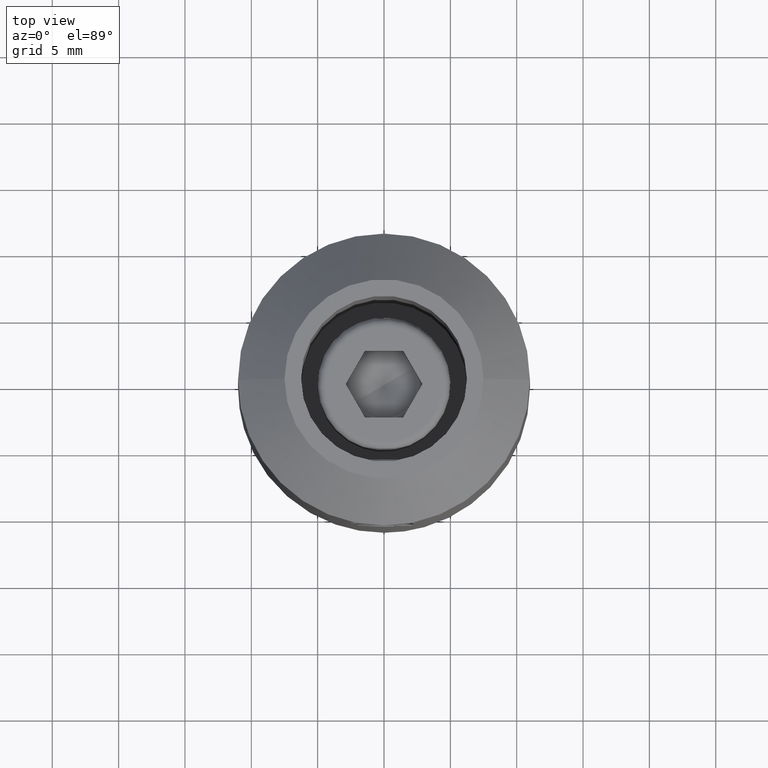
[diagram: clean part render]
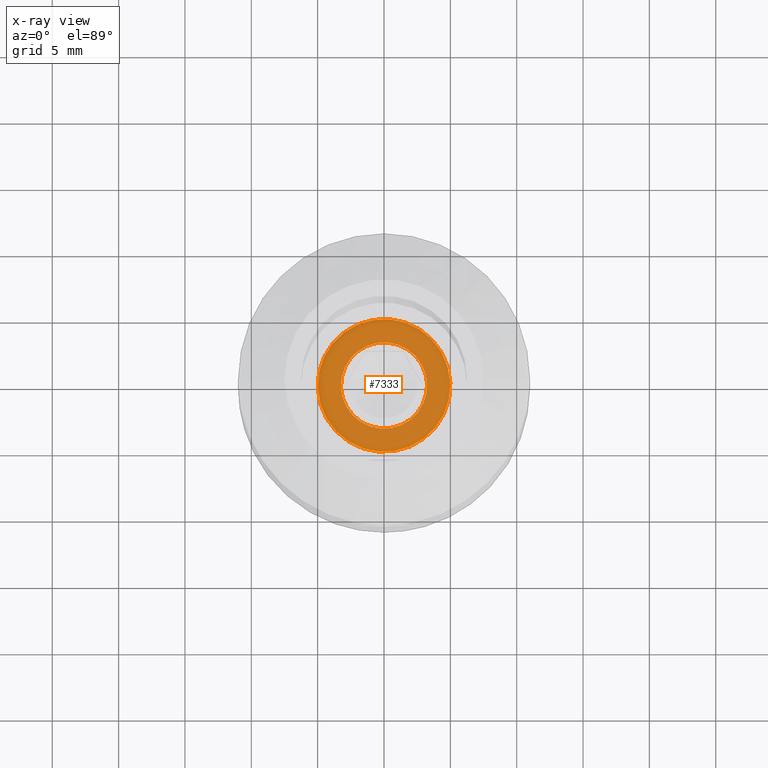
[diagram: x-ray — body ghosted, one internal face saturated and labeled with its STEP entity id]
A machine part, top view, then the same camera in x-ray: the body is ghosted and one INTERNAL B-rep face — a face not visible from any outside direction — is saturated and labeled: STEP entity #7333.
In plain terms, the highlighted planar face has unit normal (0, 0, -1).
Its self-contained STEP definition (entity closure, byte-faithful):
#152 = CARTESIAN_POINT ( 'NONE',  ( 6.000000000000001776, 5.000000000000084377, 4.336808689942017736E-16 ) ) ;
#1693 = EDGE_LOOP ( 'NONE', ( #19337, #6435 ) ) ;
#1995 = CARTESIAN_POINT ( 'NONE',  ( 5.999999999999998224, -1.054711873393898713E-14, 5.000000000000062172 ) ) ;
#2171 = VERTEX_POINT ( 'NONE', #6700 ) ;
#3101 = EDGE_LOOP ( 'NONE', ( #15708, #5265 ) ) ;
#3600 = FACE_BOUND ( 'NONE', #1693, .T. ) ;
#4043 = CARTESIAN_POINT ( 'NONE',  ( 5.999999999999998224, 0.000000000000000000, 0.000000000000000000 ) ) ;
#4592 = FACE_OUTER_BOUND ( 'NONE', #3101, .T. ) ;
#5245 = DIRECTION ( 'NONE',  ( -1.000000000000000000, 0.000000000000000000, 0.000000000000000000 ) ) ;
#5265 = ORIENTED_EDGE ( 'NONE', *, *, #19404, .F. ) ;
#5383 = DIRECTION ( 'NONE',  ( 0.000000000000000000, -2.109423746787771394E-15, 1.000000000000000000 ) ) ;
#5870 = DIRECTION ( 'NONE',  ( 0.000000000000000000, 2.109423746787771000E-15, -1.000000000000000000 ) ) ;
#6435 = ORIENTED_EDGE ( 'NONE', *, *, #17094, .T. ) ;
#6700 = CARTESIAN_POINT ( 'NONE',  ( 5.999999999999998224, 1.115944213351253350E-14, -5.000000000000000000 ) ) ;
#6731 = AXIS2_PLACEMENT_3D ( 'NONE', #4043, #14960, #8610 ) ;
#7333 = ADVANCED_FACE ( 'NONE', ( #3600, #4592 ), #12887, .T. ) ;
#8026 = DIRECTION ( 'NONE',  ( 0.000000000000000000, 2.109423746787771000E-15, -1.000000000000000000 ) ) ;
#8253 = DIRECTION ( 'NONE',  ( 1.000000000000000000, 0.000000000000000000, 0.000000000000000000 ) ) ;
#8610 = DIRECTION ( 'NONE',  ( 0.000000000000000000, -2.109423746787771394E-15, 1.000000000000000000 ) ) ;
#9998 = CIRCLE ( 'NONE', #13667, 3.250000000000039968 ) ;
#11348 = VERTEX_POINT ( 'NONE', #15694 ) ;
#11468 = AXIS2_PLACEMENT_3D ( 'NONE', #152, #8253, #16076 ) ;
#12094 = EDGE_CURVE ( 'NONE', #13312, #2171, #16811, .T. ) ;
#12222 = DIRECTION ( 'NONE',  ( -1.000000000000000000, -0.000000000000000000, -0.000000000000000000 ) ) ;
#12496 = CARTESIAN_POINT ( 'NONE',  ( 6.000000000000001776, 0.000000000000000000, 0.000000000000000000 ) ) ;
#12887 = PLANE ( 'NONE',  #11468 ) ;
#13136 = AXIS2_PLACEMENT_3D ( 'NONE', #13256, #5245, #5383 ) ;
#13256 = CARTESIAN_POINT ( 'NONE',  ( 5.999999999999998224, 0.000000000000000000, 0.000000000000000000 ) ) ;
#13312 = VERTEX_POINT ( 'NONE', #1995 ) ;
#13667 = AXIS2_PLACEMENT_3D ( 'NONE', #12496, #12222, #5870 ) ;
#14960 = DIRECTION ( 'NONE',  ( -1.000000000000000000, 0.000000000000000000, 0.000000000000000000 ) ) ;
#15666 = CIRCLE ( 'NONE', #13136, 5.000000000000062172 ) ;
#15694 = CARTESIAN_POINT ( 'NONE',  ( 6.000000000000001776, 6.855627177060340059E-15, -3.250000000000039968 ) ) ;
#15708 = ORIENTED_EDGE ( 'NONE', *, *, #12094, .F. ) ;
#15847 = DIRECTION ( 'NONE',  ( -1.000000000000000000, -0.000000000000000000, -0.000000000000000000 ) ) ;
#16076 = DIRECTION ( 'NONE',  ( -0.000000000000000000, 2.109423746787771394E-15, -1.000000000000000000 ) ) ;
#16811 = CIRCLE ( 'NONE', #6731, 5.000000000000062172 ) ;
#17094 = EDGE_CURVE ( 'NONE', #19419, #11348, #18690, .T. ) ;
#17292 = CARTESIAN_POINT ( 'NONE',  ( 6.000000000000001776, 0.000000000000000000, 0.000000000000000000 ) ) ;
#18238 = EDGE_CURVE ( 'NONE', #11348, #19419, #9998, .T. ) ;
#18690 = CIRCLE ( 'NONE', #20127, 3.250000000000039968 ) ;
#19337 = ORIENTED_EDGE ( 'NONE', *, *, #18238, .T. ) ;
#19404 = EDGE_CURVE ( 'NONE', #2171, #13312, #15666, .T. ) ;
#19419 = VERTEX_POINT ( 'NONE', #19677 ) ;
#19677 = CARTESIAN_POINT ( 'NONE',  ( 6.000000000000001776, -6.457616967337446095E-15, 3.250000000000039968 ) ) ;
#20127 = AXIS2_PLACEMENT_3D ( 'NONE', #17292, #15847, #8026 ) ;